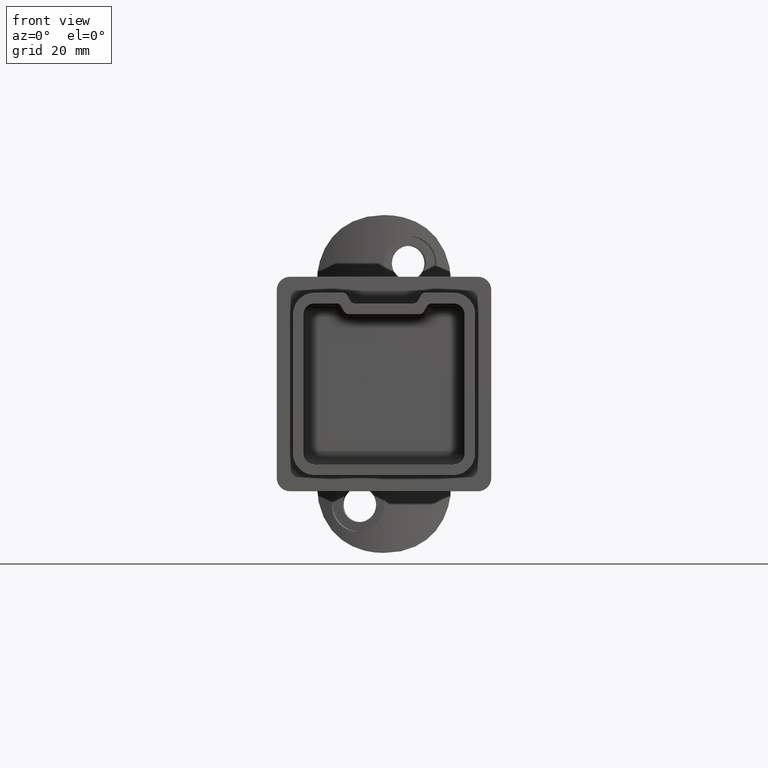
[diagram: clean part render]
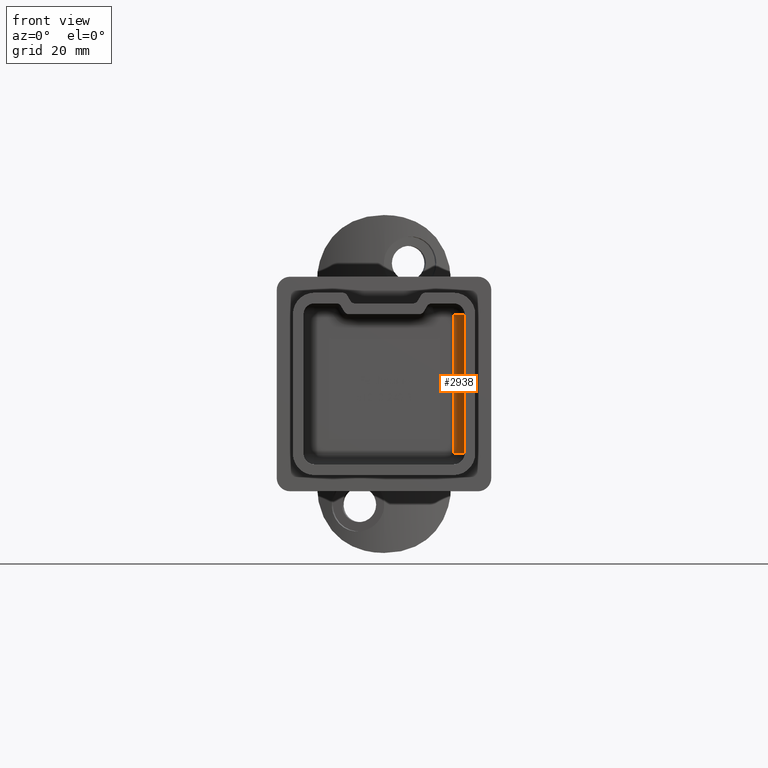
[diagram: same view with one face highlighted and labeled with its STEP entity id]
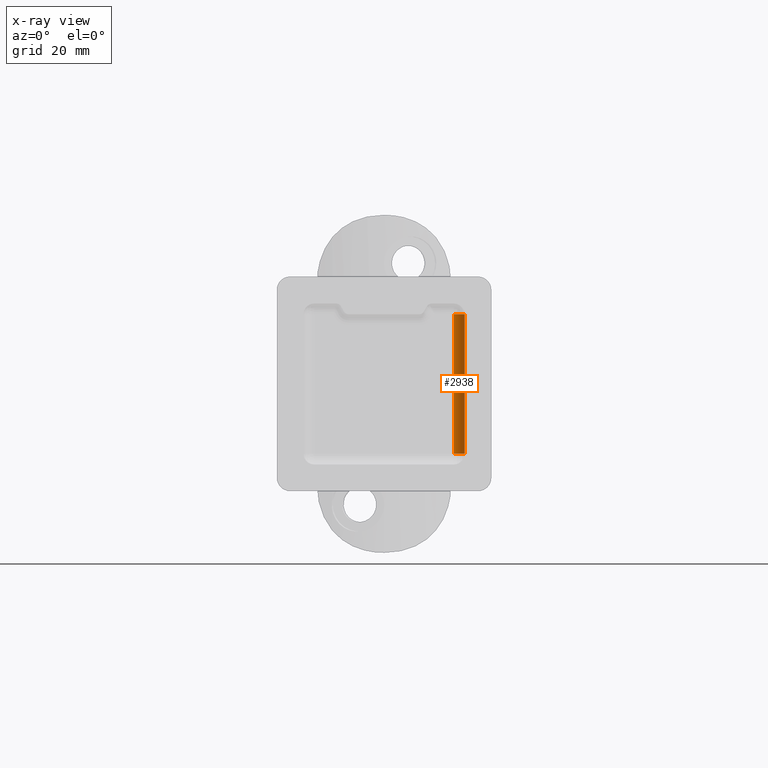
[diagram: x-ray of the same camera — body ghosted, the highlighted face saturated]
A machine part, front view. The second image highlights one B-rep face of the part: STEP entity #2938.
The next image is the same camera in x-ray: the body ghosted, the highlighted face saturated — about 0% of this face is hidden behind the body in this view.
In plain terms, the highlighted cylindrical surface (edge-blend (fillet) strip) has radius 2 mm, axis along (-0, 0, 1).
Its self-contained STEP definition (entity closure, byte-faithful):
#884 = DIRECTION ( 'NONE',  ( 0.000000000000000000, -0.000000000000000000, -1.000000000000000000 ) ) ;
#1308 = AXIS2_PLACEMENT_3D ( 'NONE', #13984, #3934, #8807 ) ;
#1951 = CARTESIAN_POINT ( 'NONE',  ( 12.99999999999999822, 0.000000000000000000, 0.000000000000000000 ) ) ;
#1965 = VECTOR ( 'NONE', #884, 1000.000000000000000 ) ;
#1977 = FACE_OUTER_BOUND ( 'NONE', #3113, .T. ) ;
#2617 = ORIENTED_EDGE ( 'NONE', *, *, #3158, .T. ) ;
#2744 = CIRCLE ( 'NONE', #5867, 2.000000000000000000 ) ;
#2938 = ADVANCED_FACE ( 'NONE', ( #1977 ), #13054, .F. ) ;
#2970 = LINE ( 'NONE', #1951, #8122 ) ;
#3113 = EDGE_LOOP ( 'NONE', ( #2617, #12767, #8158, #11281 ) ) ;
#3158 = EDGE_CURVE ( 'NONE', #4429, #6856, #2744, .T. ) ;
#3475 = VERTEX_POINT ( 'NONE', #15922 ) ;
#3934 = DIRECTION ( 'NONE',  ( -0.000000000000000000, 0.000000000000000000, 1.000000000000000000 ) ) ;
#4179 = AXIS2_PLACEMENT_3D ( 'NONE', #4706, #14872, #7285 ) ;
#4429 = VERTEX_POINT ( 'NONE', #5544 ) ;
#4566 = CARTESIAN_POINT ( 'NONE',  ( 14.99999999999999822, -2.000000000000000000, 0.000000000000000000 ) ) ;
#4706 = CARTESIAN_POINT ( 'NONE',  ( 12.99999999999999822, -2.000000000000000000, -13.00000000000000355 ) ) ;
#4726 = LINE ( 'NONE', #4566, #1965 ) ;
#5493 = CIRCLE ( 'NONE', #4179, 2.000000000000000000 ) ;
#5544 = CARTESIAN_POINT ( 'NONE',  ( 14.99999999999999822, -2.000000000000000000, 13.00000000000000533 ) ) ;
#5867 = AXIS2_PLACEMENT_3D ( 'NONE', #8895, #13914, #7584 ) ;
#6856 = VERTEX_POINT ( 'NONE', #8411 ) ;
#7009 = DIRECTION ( 'NONE',  ( -0.000000000000000000, 0.000000000000000000, 1.000000000000000000 ) ) ;
#7285 = DIRECTION ( 'NONE',  ( 1.000000000000000000, 0.000000000000000000, 0.000000000000000000 ) ) ;
#7584 = DIRECTION ( 'NONE',  ( 1.000000000000000000, 0.000000000000000000, 0.000000000000000000 ) ) ;
#7619 = EDGE_CURVE ( 'NONE', #11432, #3475, #5493, .T. ) ;
#8122 = VECTOR ( 'NONE', #7009, 1000.000000000000000 ) ;
#8158 = ORIENTED_EDGE ( 'NONE', *, *, #7619, .F. ) ;
#8411 = CARTESIAN_POINT ( 'NONE',  ( 12.99999999999999822, 0.000000000000000000, 13.00000000000000533 ) ) ;
#8807 = DIRECTION ( 'NONE',  ( 1.000000000000000000, 0.000000000000000000, 0.000000000000000000 ) ) ;
#8895 = CARTESIAN_POINT ( 'NONE',  ( 12.99999999999999822, -2.000000000000000000, 13.00000000000000533 ) ) ;
#9964 = EDGE_CURVE ( 'NONE', #3475, #6856, #2970, .T. ) ;
#11281 = ORIENTED_EDGE ( 'NONE', *, *, #15095, .F. ) ;
#11432 = VERTEX_POINT ( 'NONE', #14470 ) ;
#12767 = ORIENTED_EDGE ( 'NONE', *, *, #9964, .F. ) ;
#13054 = CYLINDRICAL_SURFACE ( 'NONE', #1308, 2.000000000000000000 ) ;
#13914 = DIRECTION ( 'NONE',  ( 0.000000000000000000, 0.000000000000000000, 1.000000000000000000 ) ) ;
#13984 = CARTESIAN_POINT ( 'NONE',  ( 12.99999999999999822, -2.000000000000000000, 0.000000000000000000 ) ) ;
#14470 = CARTESIAN_POINT ( 'NONE',  ( 14.99999999999999822, -2.000000000000001776, -13.00000000000000355 ) ) ;
#14872 = DIRECTION ( 'NONE',  ( 0.000000000000000000, 0.000000000000000000, 1.000000000000000000 ) ) ;
#15095 = EDGE_CURVE ( 'NONE', #4429, #11432, #4726, .T. ) ;
#15922 = CARTESIAN_POINT ( 'NONE',  ( 12.99999999999999822, 0.000000000000000000, -13.00000000000000355 ) ) ;